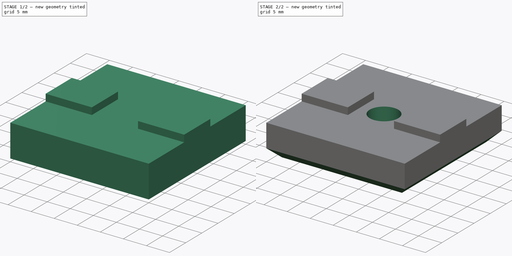
[diagram: build sequence overview — one tinted view per stage of 2, left to right]
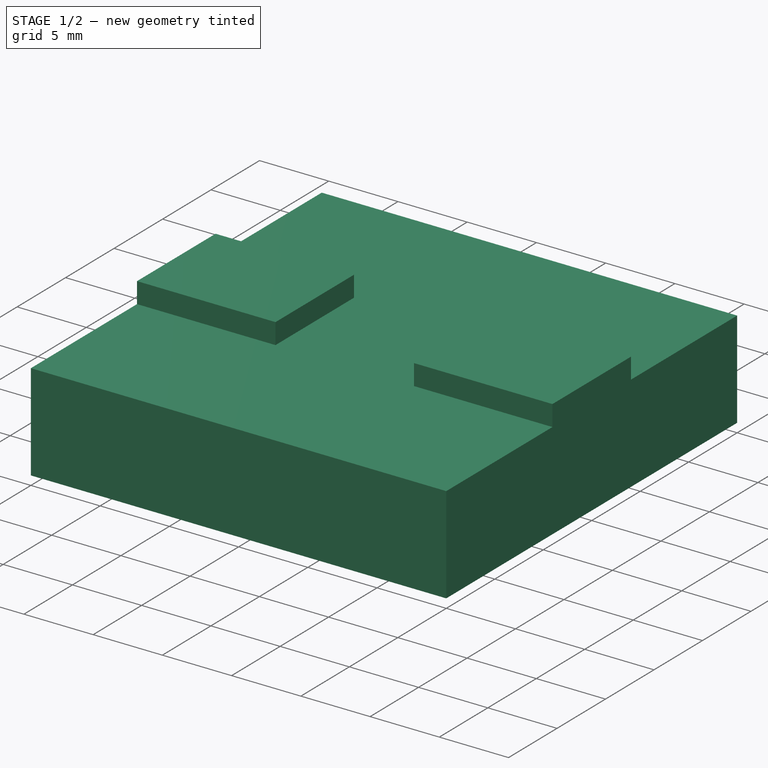
[diagram: stage 1 of 2 — iso view after this stage's code; geometry added in this stage tinted green]
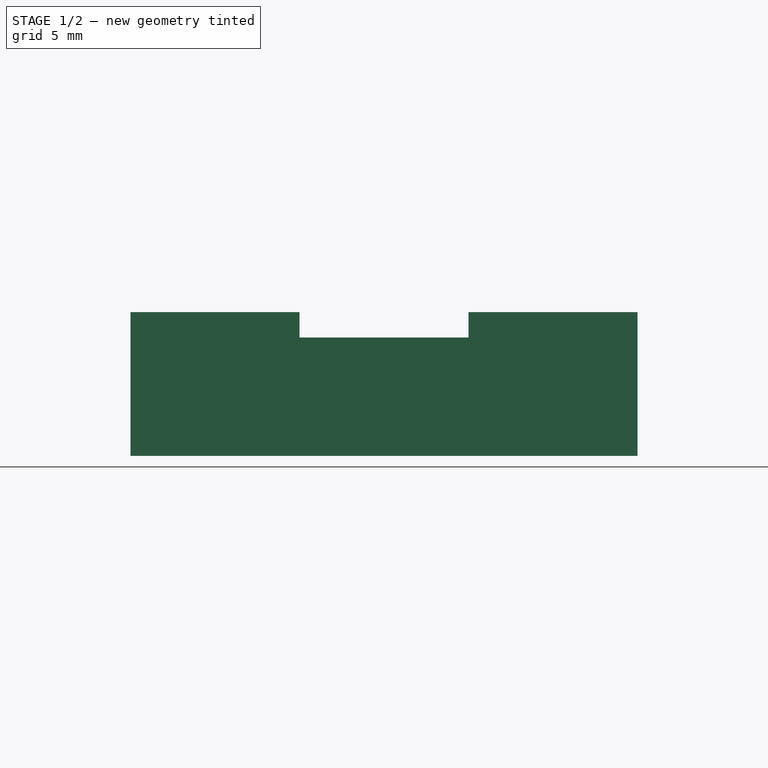
[diagram: stage 1 of 2 — front view after this stage's code; geometry added in this stage tinted green]
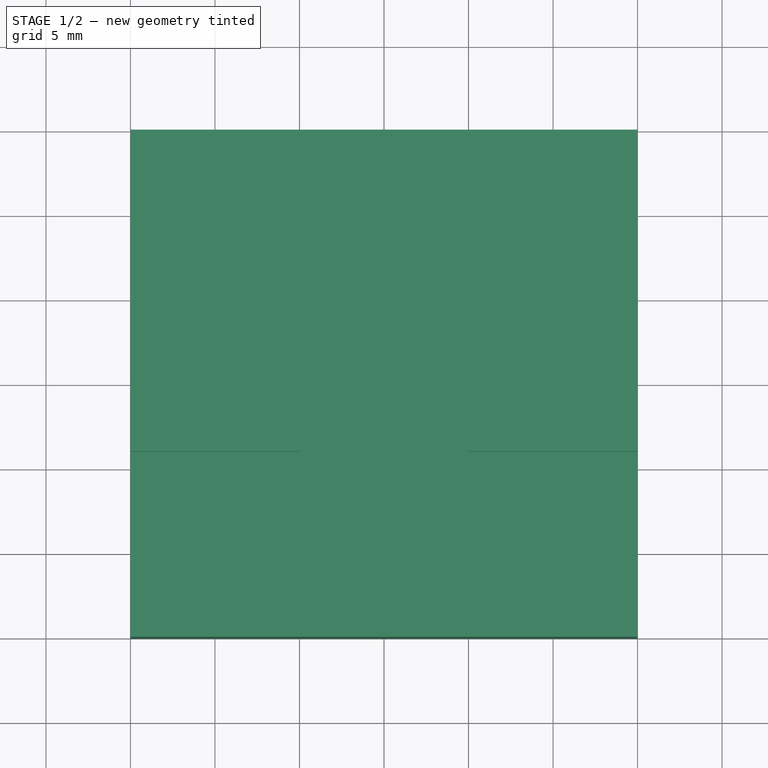
[diagram: stage 1 of 2 — top view after this stage's code; geometry added in this stage tinted green]
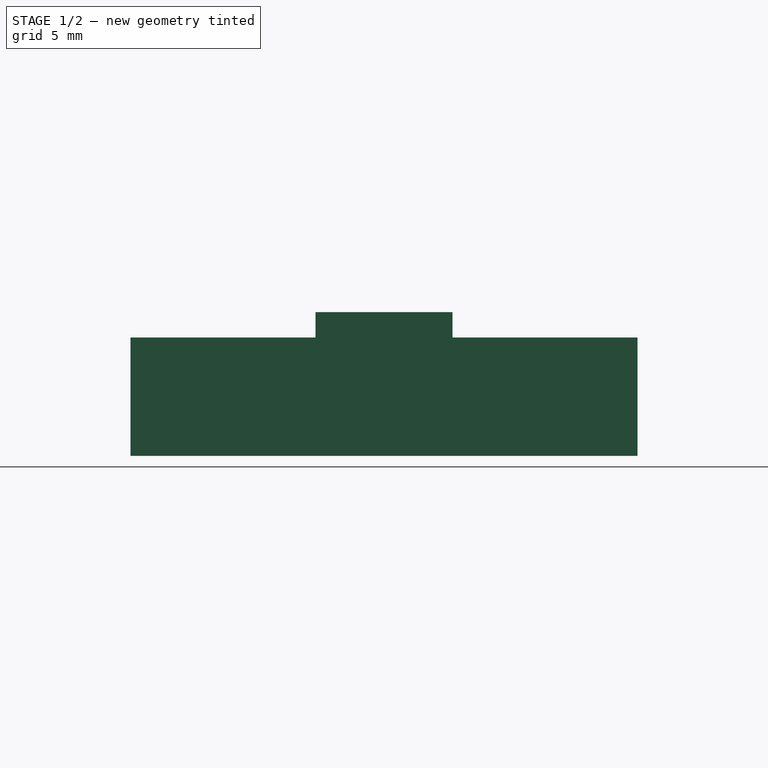
[diagram: stage 1 of 2 — right view after this stage's code; geometry added in this stage tinted green]
FCSTD DOCUMENT  (FreeCAD 0.19R)
Label: stand
License: All rights reserved
LicenseURL: http://en.wikipedia.org/wiki/All_rights_reserved
objects: Sketcher::SketchObject×3, PartDesign::Pad×2, PartDesign::Pocket×1, PartDesign::Chamfer×1, PartDesign::Body×1
note: 12 computed .brp shape members not serialized (recipe doc carries the construction recipe); baked Part::Feature solids carry a one-line shape summary decoded from their .brp

FEATURE [Sketcher::SketchObject] Sketch
  MapMode = 5
  Support = -> [XY_Plane]
  sketch-geometry (4):
    g0: LineSegment StartX=-15 StartY=15 StartZ=0 EndX=15 EndY=15 EndZ=0
    g1: LineSegment StartX=15 StartY=15 StartZ=0 EndX=15 EndY=-15 EndZ=0
    g2: LineSegment StartX=15 StartY=-15 StartZ=0 EndX=-15 EndY=-15 EndZ=0
    g3: LineSegment StartX=-15 StartY=-15 StartZ=0 EndX=-15 EndY=15 EndZ=0
  constraints (10):
    c: Coincident(g0,g1)
    c: Coincident(g1,g2)
    c: Coincident(g2,g3)
    c: Coincident(g3,g0)
    c: Horizontal(g2)
    c: Vertical(g1)
    c: Symmetric(g0,g0,g-2)
    c: Symmetric(g0,g2,g-1)
    c: Equal(g0,g3)
    c: DistanceX(g0,g0) = 30
FEATURE [PartDesign::Pad] Pad
  Length = 7
  Length2 = 100
  Profile = -> Sketch
  Type = 0
FEATURE [Sketcher::SketchObject] Sketch001
  ExternalGeometry = -> [Pad]
  MapMode = 5
  Placement = pos=(0,0,7) rot=(0,0,1;0rad)
  Support = -> [Pad]
  sketch-geometry (8):
    g0: LineSegment StartX=-15 StartY=4.05 StartZ=0 EndX=-5 EndY=4.05 EndZ=0
    g1: LineSegment StartX=-5 StartY=4.05 StartZ=0 EndX=-5 EndY=-4.05 EndZ=0
    g2: LineSegment StartX=-5 StartY=-4.05 StartZ=0 EndX=-15 EndY=-4.05 EndZ=0
    g3: LineSegment StartX=-15 StartY=-4.05 StartZ=0 EndX=-15 EndY=4.05 EndZ=0
    g4: LineSegment StartX=15 StartY=4.05 StartZ=0 EndX=5 EndY=4.05 EndZ=0
    g5: LineSegment StartX=5 StartY=4.05 StartZ=0 EndX=5 EndY=-4.05 EndZ=0
    g6: LineSegment StartX=5 StartY=-4.05 StartZ=0 EndX=15 EndY=-4.05 EndZ=0
    g7: LineSegment StartX=15 StartY=-4.05 StartZ=0 EndX=15 EndY=4.05 EndZ=0
  constraints (21):
    c: Coincident(g0,g1)
    c: Coincident(g1,g2)
    c: Coincident(g2,g3)
    c: Coincident(g3,g0)
    c: Horizontal(g0)
    c: Horizontal(g2)
    c: Vertical(g1)
    c: Vertical(g3)
    c: PointOnObject(g0,g-3)
    c: Coincident(g4,g5)
    c: Coincident(g5,g6)
    c: Coincident(g6,g7)
    c: Coincident(g7,g4)
    c: Horizontal(g4)
    c: Horizontal(g6)
    c: PointOnObject(g4,g-4)
    c: Symmetric(g0,g4,g-2)
    c: Symmetric(g5,g1,g-2)
    c: Symmetric(g6,g4,g-1)
    c: DistanceY(g3,g3) = 8.1
    c: Distance(g1,g5) = 10
FEATURE [PartDesign::Pad] Pad001
  BaseFeature = -> Pad
  Length = 1.5
  Length2 = 100
  Profile = -> Sketch001
  Type = 0
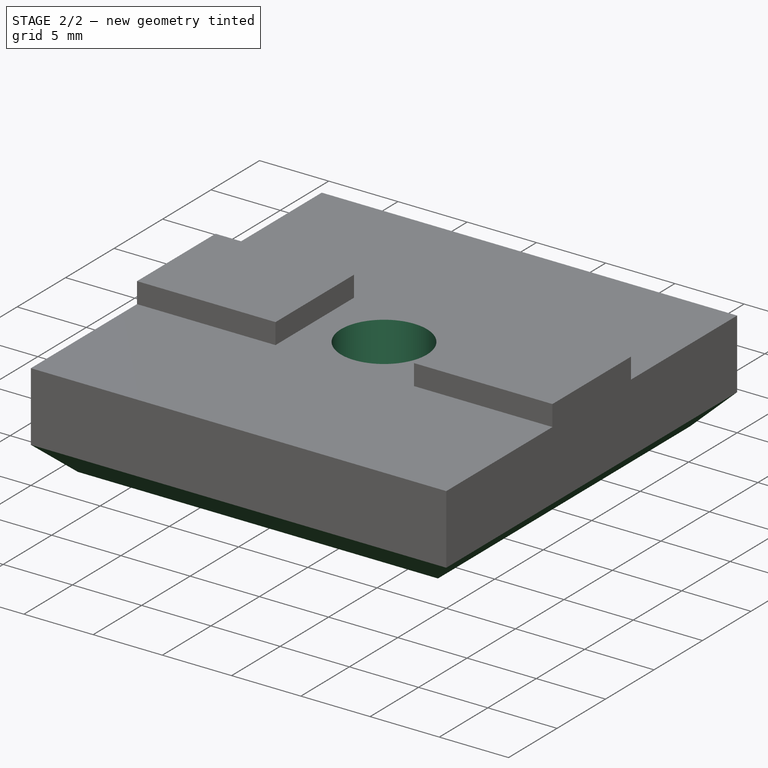
[diagram: stage 2 of 2 — iso view after this stage's code; geometry added in this stage tinted green]
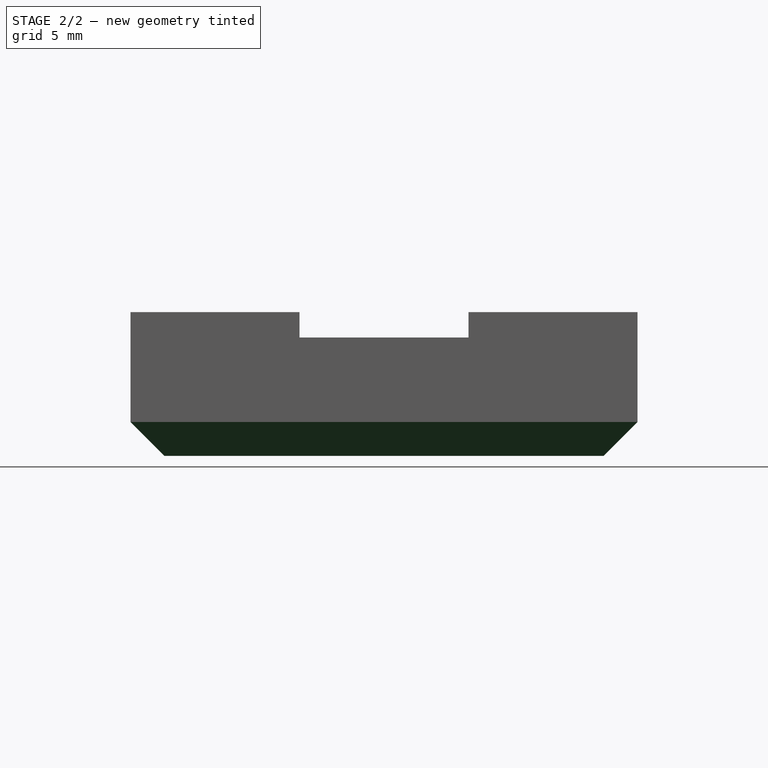
[diagram: stage 2 of 2 — front view after this stage's code; geometry added in this stage tinted green]
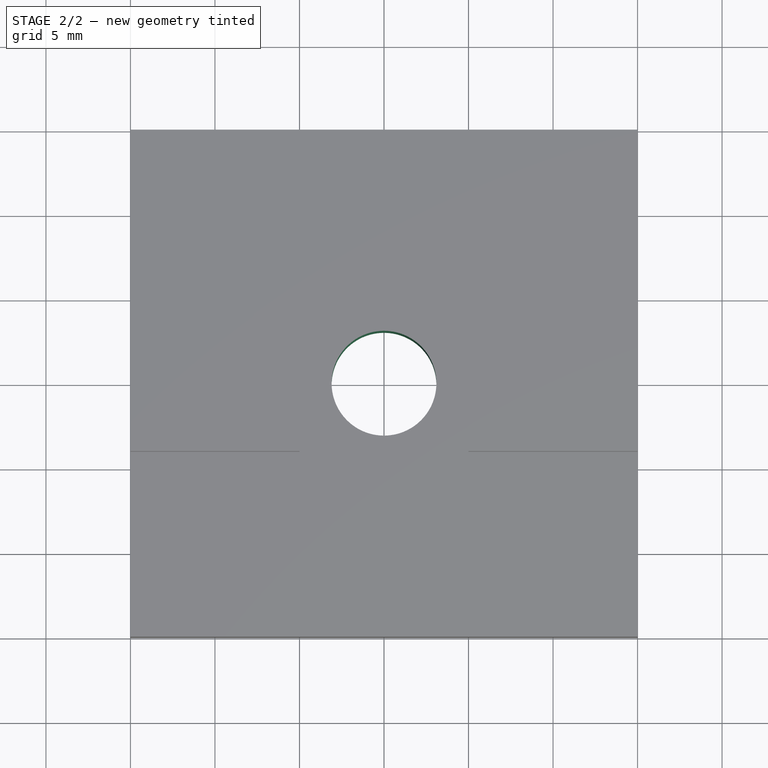
[diagram: stage 2 of 2 — top view after this stage's code; geometry added in this stage tinted green]
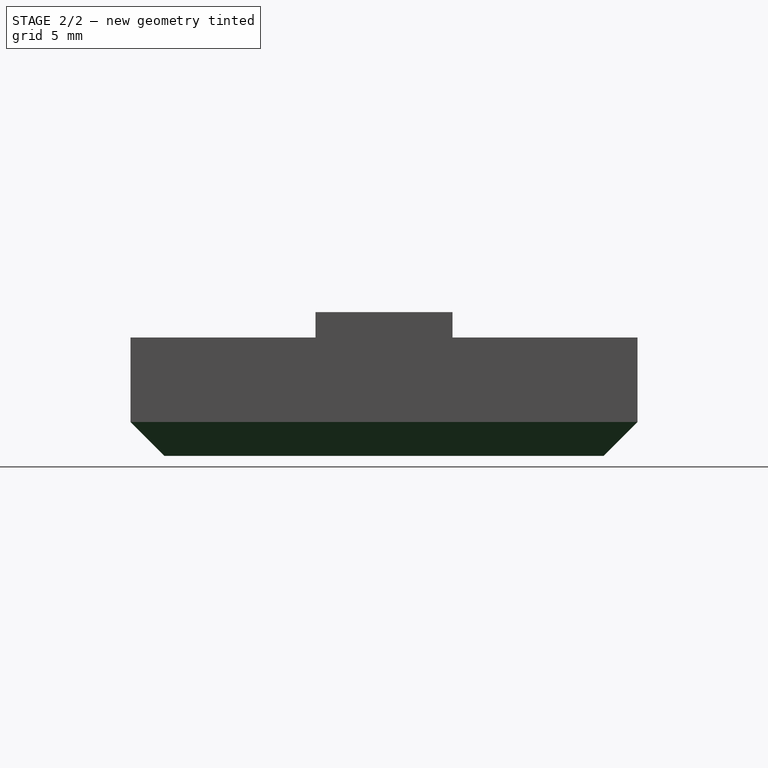
[diagram: stage 2 of 2 — right view after this stage's code; geometry added in this stage tinted green]
FEATURE [Sketcher::SketchObject] Sketch002
  MapMode = 5
  Placement = pos=(0,0,7) rot=(0,0,1;0rad)
  Support = -> [Pad001]
  sketch-geometry (1):
    g0: Circle CenterX=0 CenterY=0 CenterZ=0 NormalX=0 NormalY=0 NormalZ=1 AngleXU=0 Radius=3.1
  constraints (2):
    c: Coincident(g0,g-1)
    c: Radius(g0) = 3.1
FEATURE [PartDesign::Pocket] Pocket
  BaseFeature = -> Pad001
  Length = 5
  Length2 = 100
  Profile = -> Sketch002
  Type = 1
FEATURE [PartDesign::Chamfer] Chamfer
  Angle = 45
  Base = -> Pocket [Edge11,Edge15,Edge6,Edge3]
  BaseFeature = -> Pocket
  ChamferType = 0
  FlipDirection = false
  Size = 2
  Size2 = 1
  SupportTransform = false
FEATURE [PartDesign::Body] Body
  Group = -> [Sketch,Pad,Sketch001,Pad001,Sketch002,Pocket,Chamfer]
  Origin = -> Origin
  Tip = -> Chamfer
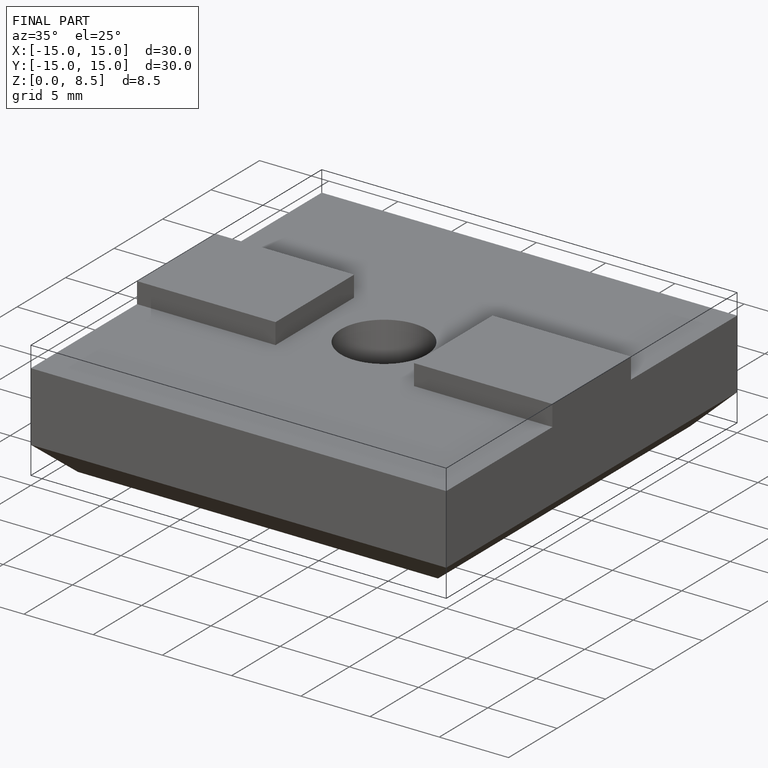
[diagram: finished part — iso view with bounding-box wireframe]
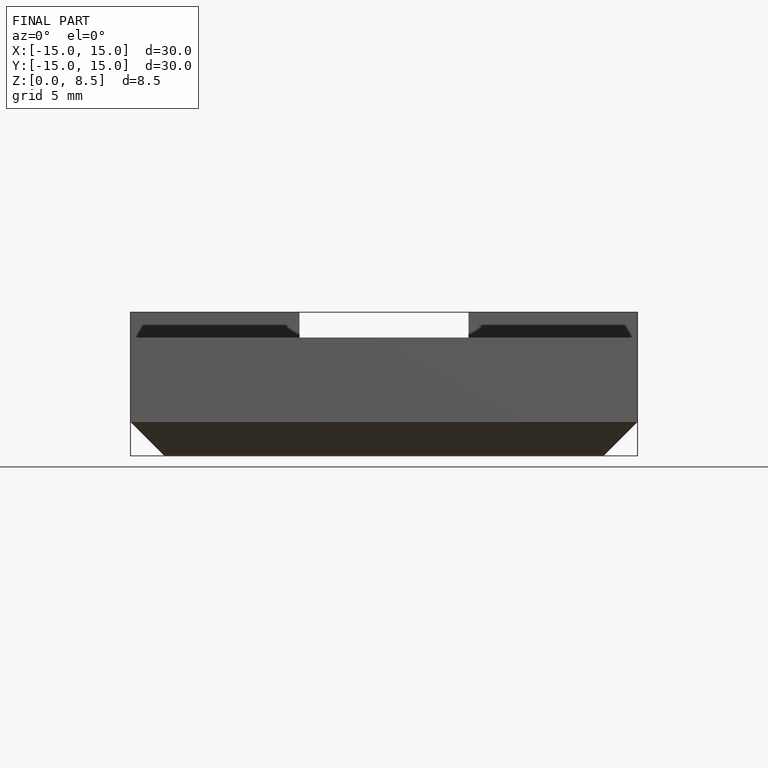
[diagram: finished part — front view with bounding-box wireframe]
